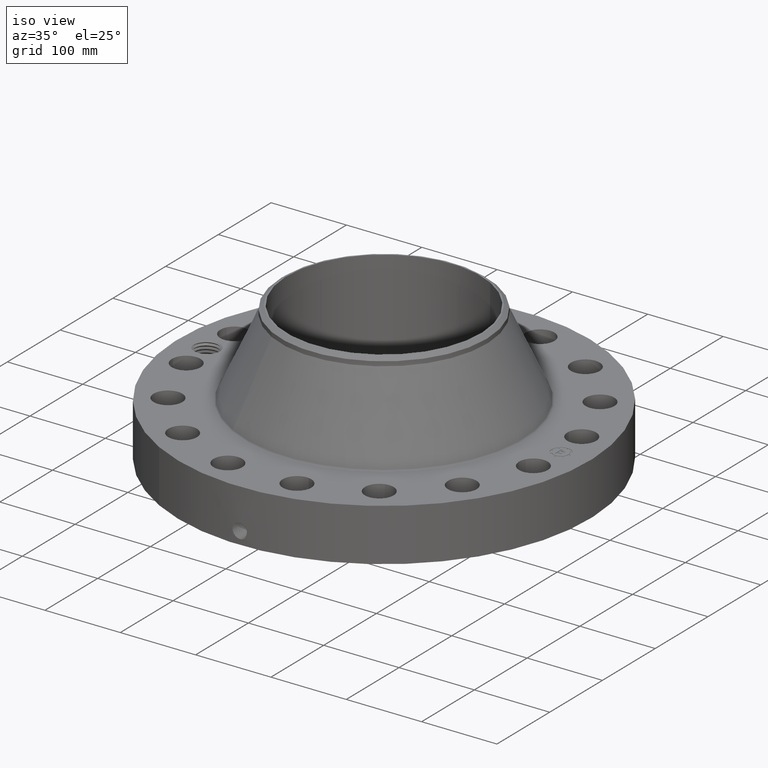
[diagram: clean part render]
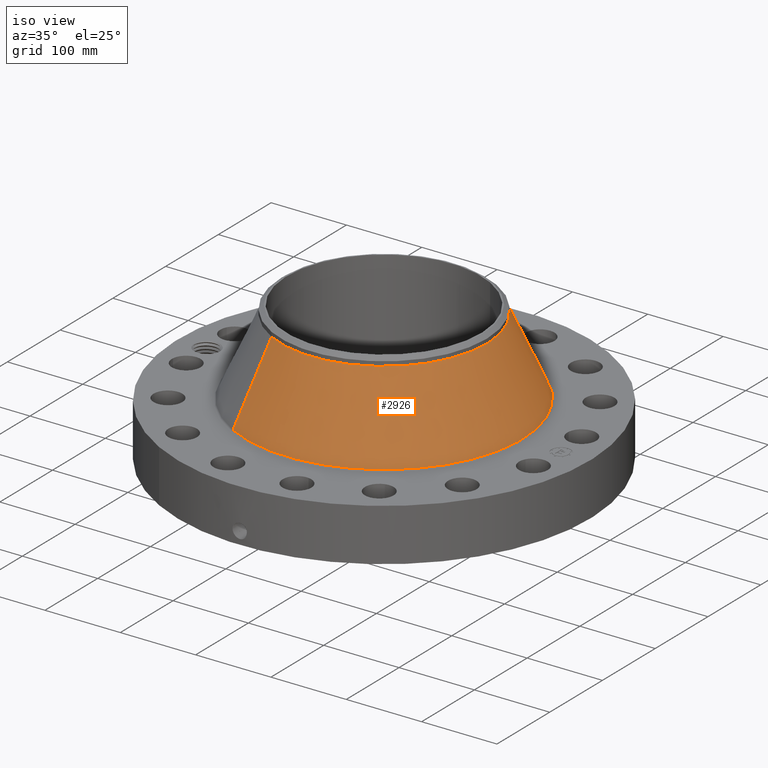
[diagram: same view with one face highlighted and labeled with its STEP entity id]
A machine part, iso view. The second image highlights one B-rep face of the part: STEP entity #2926.
In plain terms, the highlighted conical surface has half-angle 24.636 deg.
Its self-contained STEP definition (entity closure, byte-faithful):
#2272=AXIS2_PLACEMENT_3D('Circle Axis2P3D',#2270,#2271,$) ;
#2899=AXIS2_PLACEMENT_3D('Cone Axis2P3D',#2896,#2897,#2898) ;
#2910=AXIS2_PLACEMENT_3D('Circle Axis2P3D',#2908,#2909,$) ;
#2267=CARTESIAN_POINT('Vertex',(3.46044975849,6.33431079453,3.06997840198)) ;
#2270=CARTESIAN_POINT('Axis2P3D Location',(0.,0.,3.06997840198)) ;
#2274=CARTESIAN_POINT('Vertex',(-3.46044975849,-6.33431079453,3.06997840198)) ;
#2896=CARTESIAN_POINT('Axis2P3D Location',(0.,0.,7.08862959015)) ;
#2901=CARTESIAN_POINT('Line Origine',(3.01868101425,5.52565853235,5.07930399607)) ;
#2905=CARTESIAN_POINT('Vertex',(2.57691227001,4.71700627018,7.08862959015)) ;
#2908=CARTESIAN_POINT('Axis2P3D Location',(0.,0.,7.08862959015)) ;
#2912=CARTESIAN_POINT('Vertex',(-2.57691227001,-4.71700627018,7.08862959015)) ;
#2915=CARTESIAN_POINT('Line Origine',(-3.01868101425,-5.52565853235,5.07930399607)) ;
#2271=DIRECTION('Axis2P3D Direction',(0.,0.,-0.0393700787402)) ;
#2897=DIRECTION('Axis2P3D Direction',(0.,0.,-0.0393700787402)) ;
#2898=DIRECTION('Axis2P3D XDirection',(-0.0188750212049,-0.0345504945626,0.)) ;
#2902=DIRECTION('Vector Direction',(0.00786798936252,0.0144022579227,-0.0357864892121)) ;
#2909=DIRECTION('Axis2P3D Direction',(0.,0.,-0.0393700787402)) ;
#2916=DIRECTION('Vector Direction',(-0.00786798936252,-0.0144022579227,-0.0357864892121)) ;
#2903=VECTOR('Line Direction',#2902,0.0393700787402) ;
#2917=VECTOR('Line Direction',#2916,0.0393700787402) ;
#2921=ORIENTED_EDGE('',*,*,#2276,.F.) ;
#2922=ORIENTED_EDGE('',*,*,#2907,.T.) ;
#2923=ORIENTED_EDGE('',*,*,#2914,.T.) ;
#2924=ORIENTED_EDGE('',*,*,#2919,.F.) ;
#2926=ADVANCED_FACE('PartBody',(#2925),#2900,.T.) ;
#2273=CIRCLE('generated circle',#2272,7.21790868415) ;
#2911=CIRCLE('generated circle',#2910,5.37500000002) ;
#2900=CONICAL_SURFACE('Cone',#2899,5.37500000002,0.429973429099) ;
#2276=EDGE_CURVE('',#2268,#2275,#2273,.T.) ;
#2907=EDGE_CURVE('',#2268,#2906,#2904,.F.) ;
#2914=EDGE_CURVE('',#2906,#2913,#2911,.T.) ;
#2919=EDGE_CURVE('',#2275,#2913,#2918,.F.) ;
#2920=EDGE_LOOP('',(#2921,#2922,#2923,#2924)) ;
#2925=FACE_OUTER_BOUND('',#2920,.T.) ;
#2904=LINE('Line',#2901,#2903) ;
#2918=LINE('Line',#2915,#2917) ;
#2268=VERTEX_POINT('',#2267) ;
#2275=VERTEX_POINT('',#2274) ;
#2906=VERTEX_POINT('',#2905) ;
#2913=VERTEX_POINT('',#2912) ;